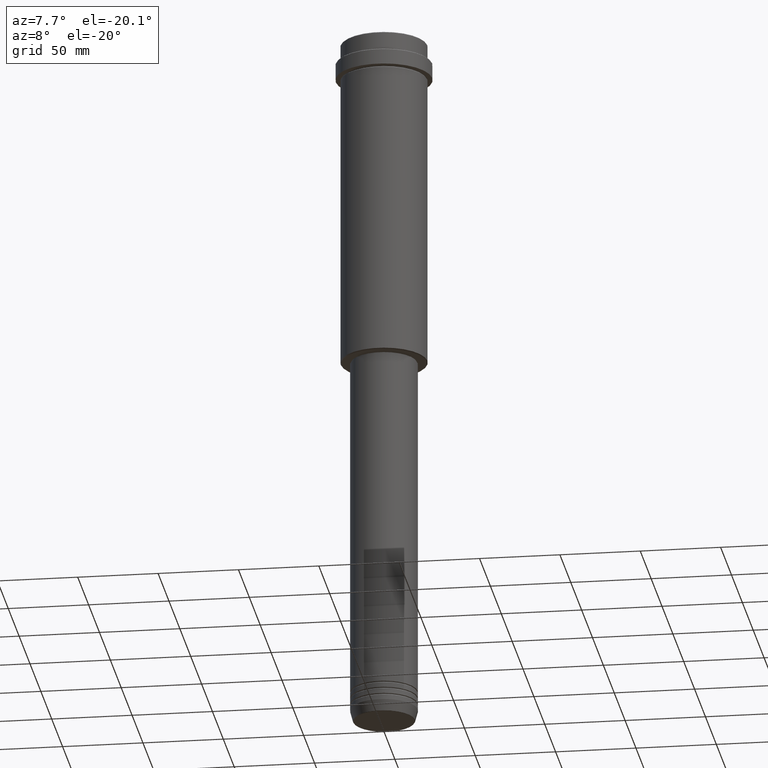
[diagram: clean part render]
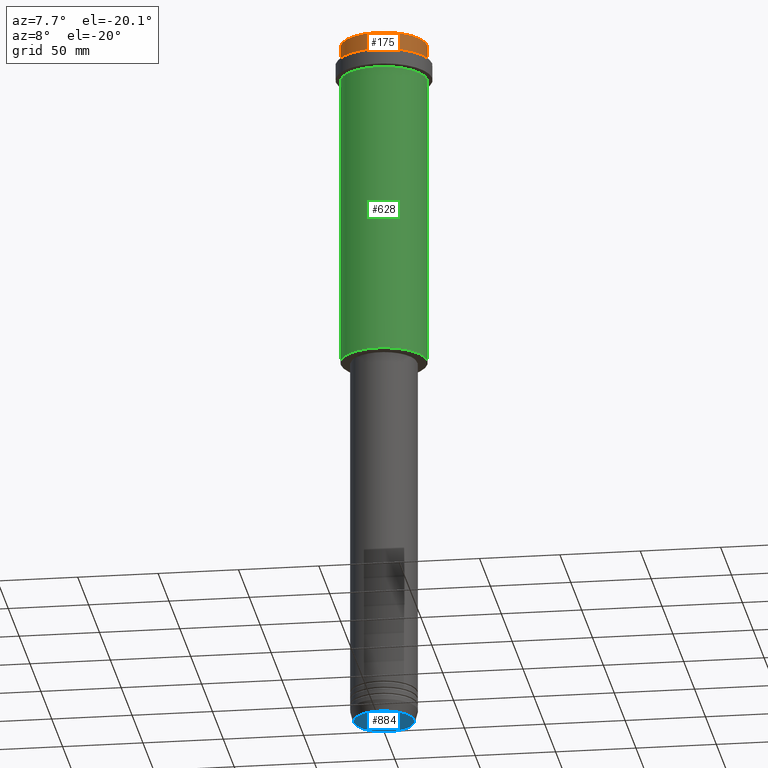
[diagram: same view with three faces highlighted in distinct colors, each labeled with its STEP entity id]
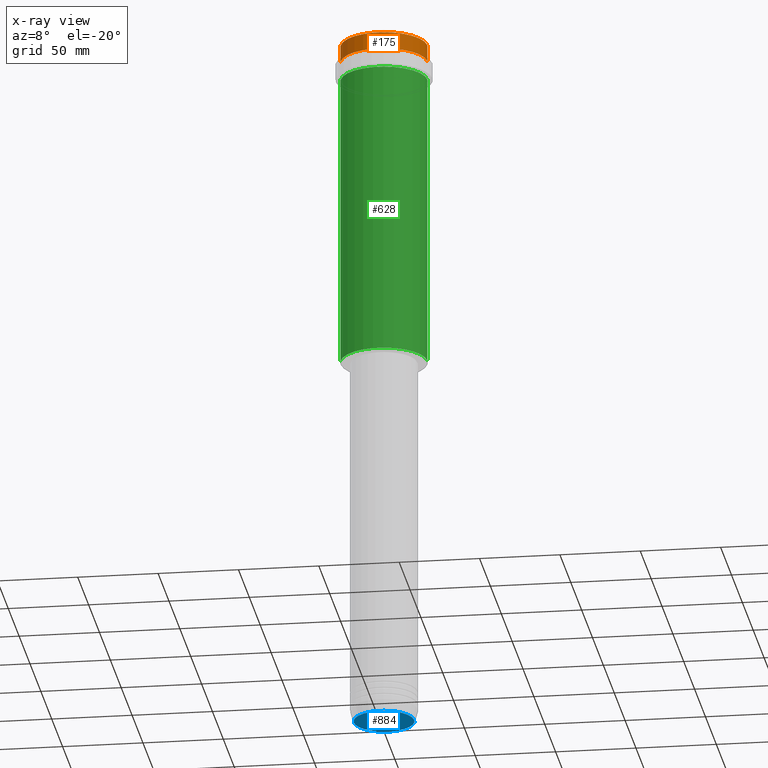
[diagram: x-ray of the same camera — body ghosted, the three highlighted faces saturated]
A machine part, auxiliary view with three faces highlighted in distinct colors.
The next image is the same camera in x-ray (body ghosted, the three faces saturated) — at least one of them is partly hidden behind the body in this view.
Their STEP definitions:

[orange] entity #175 — the highlighted cylindrical surface (partial cylindrical patch) has radius 27 mm, axis along (-0, -0, 1).
#131 = EDGE_LOOP ( 'NONE', ( #765, #1157, #1025, #415 ) ) ;
#148 = CARTESIAN_POINT ( 'NONE',  ( 0.000000000000000000, 0.000000000000000000, -0.5000000000000316414 ) ) ;
#163 = LINE ( 'NONE', #824, #595 ) ;
#175 = ADVANCED_FACE ( 'NONE', ( #584 ), #915, .T. ) ;
#364 = EDGE_CURVE ( 'NONE', #378, #1234, #163, .T. ) ;
#378 = VERTEX_POINT ( 'NONE', #1272 ) ;
#415 = ORIENTED_EDGE ( 'NONE', *, *, #835, .T. ) ;
#442 = EDGE_CURVE ( 'NONE', #504, #937, #1079, .T. ) ;
#504 = VERTEX_POINT ( 'NONE', #859 ) ;
#564 = CARTESIAN_POINT ( 'NONE',  ( 0.000000000000000000, 0.000000000000000000, 0.000000000000000000 ) ) ;
#571 = DIRECTION ( 'NONE',  ( 1.000000000000000000, 0.000000000000000000, 0.000000000000000000 ) ) ;
#584 = FACE_OUTER_BOUND ( 'NONE', #131, .T. ) ;
#595 = VECTOR ( 'NONE', #1160, 1000.000000000000000 ) ;
#736 = CARTESIAN_POINT ( 'NONE',  ( 26.99999999999999645, 0.000000000000000000, -0.5000000000000316414 ) ) ;
#741 = DIRECTION ( 'NONE',  ( -0.000000000000000000, -0.000000000000000000, 1.000000000000000000 ) ) ;
#759 = VECTOR ( 'NONE', #741, 1000.000000000000000 ) ;
#765 = ORIENTED_EDGE ( 'NONE', *, *, #442, .F. ) ;
#811 = DIRECTION ( 'NONE',  ( -0.000000000000000000, -0.000000000000000000, 1.000000000000000000 ) ) ;
#824 = CARTESIAN_POINT ( 'NONE',  ( 26.99999999999999645, 0.000000000000000000, 0.000000000000000000 ) ) ;
#835 = EDGE_CURVE ( 'NONE', #1234, #937, #873, .T. ) ;
#859 = CARTESIAN_POINT ( 'NONE',  ( -26.99999999999999645, 3.306546357697853339E-15, -11.00000000000000178 ) ) ;
#864 = CARTESIAN_POINT ( 'NONE',  ( -26.99999999999999645, 3.306546357697853339E-15, -0.5000000000000316414 ) ) ;
#873 = CIRCLE ( 'NONE', #1223, 26.99999999999999645 ) ;
#894 = AXIS2_PLACEMENT_3D ( 'NONE', #564, #1350, #571 ) ;
#914 = AXIS2_PLACEMENT_3D ( 'NONE', #944, #811, #1281 ) ;
#915 = CYLINDRICAL_SURFACE ( 'NONE', #894, 26.99999999999999645 ) ;
#937 = VERTEX_POINT ( 'NONE', #864 ) ;
#944 = CARTESIAN_POINT ( 'NONE',  ( 0.000000000000000000, 0.000000000000000000, -11.00000000000000178 ) ) ;
#1025 = ORIENTED_EDGE ( 'NONE', *, *, #364, .T. ) ;
#1033 = DIRECTION ( 'NONE',  ( 1.000000000000000000, 0.000000000000000000, 0.000000000000000000 ) ) ;
#1079 = LINE ( 'NONE', #1089, #759 ) ;
#1089 = CARTESIAN_POINT ( 'NONE',  ( -26.99999999999999645, 3.306546357697853339E-15, 0.000000000000000000 ) ) ;
#1157 = ORIENTED_EDGE ( 'NONE', *, *, #1219, .T. ) ;
#1160 = DIRECTION ( 'NONE',  ( -0.000000000000000000, -0.000000000000000000, 1.000000000000000000 ) ) ;
#1219 = EDGE_CURVE ( 'NONE', #504, #378, #1386, .T. ) ;
#1223 = AXIS2_PLACEMENT_3D ( 'NONE', #148, #1262, #1033 ) ;
#1234 = VERTEX_POINT ( 'NONE', #736 ) ;
#1262 = DIRECTION ( 'NONE',  ( 0.000000000000000000, 0.000000000000000000, -1.000000000000000000 ) ) ;
#1272 = CARTESIAN_POINT ( 'NONE',  ( 26.99999999999999645, 0.000000000000000000, -11.00000000000000178 ) ) ;
#1281 = DIRECTION ( 'NONE',  ( 1.000000000000000000, 0.000000000000000000, 0.000000000000000000 ) ) ;
#1350 = DIRECTION ( 'NONE',  ( -0.000000000000000000, -0.000000000000000000, 1.000000000000000000 ) ) ;
#1386 = CIRCLE ( 'NONE', #914, 26.99999999999999645 ) ;

[blue] entity #884 — the highlighted planar face has unit normal (0, -0, 1).
#81 = PLANE ( 'NONE',  #1267 ) ;
#116 = AXIS2_PLACEMENT_3D ( 'NONE', #1290, #210, #527 ) ;
#180 = CARTESIAN_POINT ( 'NONE',  ( 18.74069215899265473, 0.000000000000000000, -443.0000000000000000 ) ) ;
#210 = DIRECTION ( 'NONE',  ( 0.000000000000000000, 0.000000000000000000, -1.000000000000000000 ) ) ;
#311 = DIRECTION ( 'NONE',  ( 1.000000000000000000, 0.000000000000000000, 0.000000000000000000 ) ) ;
#392 = CIRCLE ( 'NONE', #783, 18.74069215899265473 ) ;
#397 = VERTEX_POINT ( 'NONE', #180 ) ;
#494 = ORIENTED_EDGE ( 'NONE', *, *, #1363, .T. ) ;
#527 = DIRECTION ( 'NONE',  ( 1.000000000000000000, 0.000000000000000000, 0.000000000000000000 ) ) ;
#592 = CARTESIAN_POINT ( 'NONE',  ( -18.74069215899265473, 2.324645815916091924E-15, -443.0000000000000000 ) ) ;
#783 = AXIS2_PLACEMENT_3D ( 'NONE', #1405, #833, #1208 ) ;
#833 = DIRECTION ( 'NONE',  ( 0.000000000000000000, 0.000000000000000000, -1.000000000000000000 ) ) ;
#843 = VERTEX_POINT ( 'NONE', #592 ) ;
#884 = ADVANCED_FACE ( 'NONE', ( #1171 ), #81, .F. ) ;
#936 = EDGE_LOOP ( 'NONE', ( #494, #1404 ) ) ;
#992 = CIRCLE ( 'NONE', #116, 18.74069215899265473 ) ;
#1015 = EDGE_CURVE ( 'NONE', #843, #397, #392, .T. ) ;
#1171 = FACE_OUTER_BOUND ( 'NONE', #936, .T. ) ;
#1193 = DIRECTION ( 'NONE',  ( 0.000000000000000000, -0.000000000000000000, 1.000000000000000000 ) ) ;
#1208 = DIRECTION ( 'NONE',  ( 1.000000000000000000, 0.000000000000000000, 0.000000000000000000 ) ) ;
#1267 = AXIS2_PLACEMENT_3D ( 'NONE', #1276, #1193, #311 ) ;
#1276 = CARTESIAN_POINT ( 'NONE',  ( 0.000000000000000000, 0.000000000000000000, -443.0000000000000000 ) ) ;
#1290 = CARTESIAN_POINT ( 'NONE',  ( 0.000000000000000000, 0.000000000000000000, -443.0000000000000000 ) ) ;
#1363 = EDGE_CURVE ( 'NONE', #397, #843, #992, .T. ) ;
#1404 = ORIENTED_EDGE ( 'NONE', *, *, #1015, .T. ) ;
#1405 = CARTESIAN_POINT ( 'NONE',  ( 0.000000000000000000, 0.000000000000000000, -443.0000000000000000 ) ) ;

[green] entity #628 — the highlighted cylindrical surface (partial cylindrical patch) has radius 27 mm, axis along (-0, -0, 1).
#11 = DIRECTION ( 'NONE',  ( -0.000000000000000000, -0.000000000000000000, 1.000000000000000000 ) ) ;
#33 = CARTESIAN_POINT ( 'NONE',  ( 26.99999999999999645, 0.000000000000000000, 0.000000000000000000 ) ) ;
#68 = AXIS2_PLACEMENT_3D ( 'NONE', #769, #1023, #346 ) ;
#88 = ORIENTED_EDGE ( 'NONE', *, *, #1362, .F. ) ;
#98 = ORIENTED_EDGE ( 'NONE', *, *, #193, .T. ) ;
#193 = EDGE_CURVE ( 'NONE', #1296, #879, #345, .T. ) ;
#199 = VECTOR ( 'NONE', #1135, 1000.000000000000000 ) ;
#240 = EDGE_CURVE ( 'NONE', #879, #704, #577, .T. ) ;
#247 = DIRECTION ( 'NONE',  ( -0.000000000000000000, -0.000000000000000000, 1.000000000000000000 ) ) ;
#345 = CIRCLE ( 'NONE', #68, 26.99999999999999645 ) ;
#346 = DIRECTION ( 'NONE',  ( -1.000000000000000000, 0.000000000000000000, 0.000000000000000000 ) ) ;
#358 = CARTESIAN_POINT ( 'NONE',  ( 26.99999999999999645, 0.000000000000000000, -23.00000000000000000 ) ) ;
#391 = VECTOR ( 'NONE', #11, 1000.000000000000000 ) ;
#428 = DIRECTION ( 'NONE',  ( -0.000000000000000000, -0.000000000000000000, 1.000000000000000000 ) ) ;
#462 = CARTESIAN_POINT ( 'NONE',  ( -26.99999999999999645, 3.306546357697853339E-15, 0.000000000000000000 ) ) ;
#543 = DIRECTION ( 'NONE',  ( 1.000000000000000000, 0.000000000000000000, 0.000000000000000000 ) ) ;
#577 = LINE ( 'NONE', #33, #199 ) ;
#603 = EDGE_CURVE ( 'NONE', #1296, #971, #670, .T. ) ;
#628 = ADVANCED_FACE ( 'NONE', ( #906 ), #1321, .T. ) ;
#655 = CARTESIAN_POINT ( 'NONE',  ( 0.000000000000000000, 0.000000000000000000, -23.00000000000000000 ) ) ;
#670 = LINE ( 'NONE', #462, #391 ) ;
#704 = VERTEX_POINT ( 'NONE', #358 ) ;
#740 = CARTESIAN_POINT ( 'NONE',  ( -26.99999999999999645, 3.306546357697853339E-15, -23.00000000000000000 ) ) ;
#769 = CARTESIAN_POINT ( 'NONE',  ( 0.000000000000000000, 0.000000000000000000, -207.5000000000000284 ) ) ;
#827 = CIRCLE ( 'NONE', #1245, 26.99999999999999645 ) ;
#871 = AXIS2_PLACEMENT_3D ( 'NONE', #1209, #247, #1102 ) ;
#879 = VERTEX_POINT ( 'NONE', #1365 ) ;
#906 = FACE_OUTER_BOUND ( 'NONE', #1393, .T. ) ;
#969 = ORIENTED_EDGE ( 'NONE', *, *, #240, .T. ) ;
#971 = VERTEX_POINT ( 'NONE', #740 ) ;
#1023 = DIRECTION ( 'NONE',  ( -0.000000000000000000, -0.000000000000000000, 1.000000000000000000 ) ) ;
#1102 = DIRECTION ( 'NONE',  ( 1.000000000000000000, 0.000000000000000000, 0.000000000000000000 ) ) ;
#1135 = DIRECTION ( 'NONE',  ( -0.000000000000000000, -0.000000000000000000, 1.000000000000000000 ) ) ;
#1197 = CARTESIAN_POINT ( 'NONE',  ( -26.99999999999999645, 3.306546357697853339E-15, -207.5000000000000284 ) ) ;
#1209 = CARTESIAN_POINT ( 'NONE',  ( 0.000000000000000000, 0.000000000000000000, 0.000000000000000000 ) ) ;
#1245 = AXIS2_PLACEMENT_3D ( 'NONE', #655, #428, #543 ) ;
#1268 = ORIENTED_EDGE ( 'NONE', *, *, #603, .F. ) ;
#1296 = VERTEX_POINT ( 'NONE', #1197 ) ;
#1321 = CYLINDRICAL_SURFACE ( 'NONE', #871, 26.99999999999999645 ) ;
#1362 = EDGE_CURVE ( 'NONE', #971, #704, #827, .T. ) ;
#1365 = CARTESIAN_POINT ( 'NONE',  ( 26.99999999999999645, 0.000000000000000000, -207.5000000000000284 ) ) ;
#1393 = EDGE_LOOP ( 'NONE', ( #1268, #98, #969, #88 ) ) ;